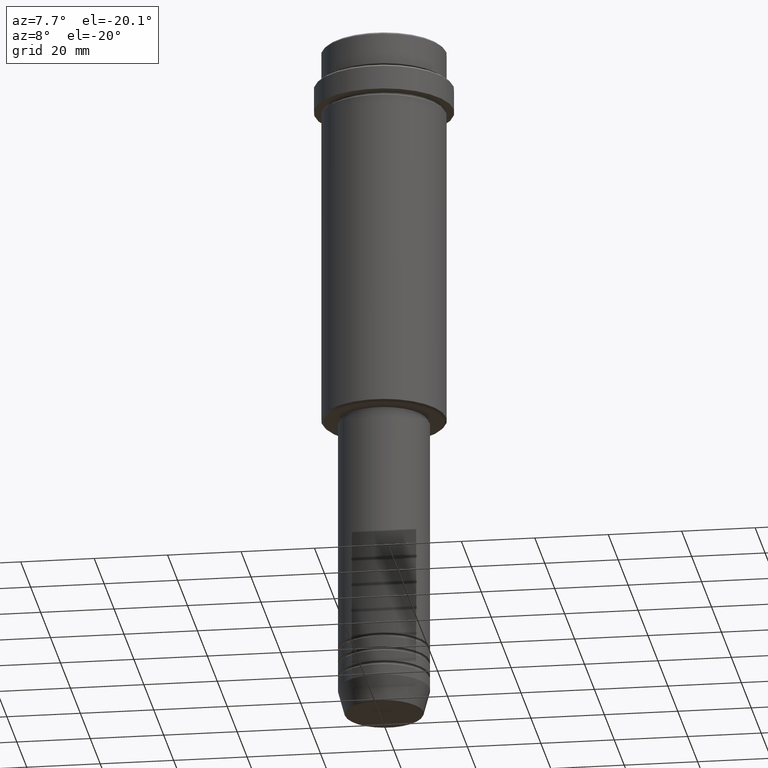
[diagram: clean part render]
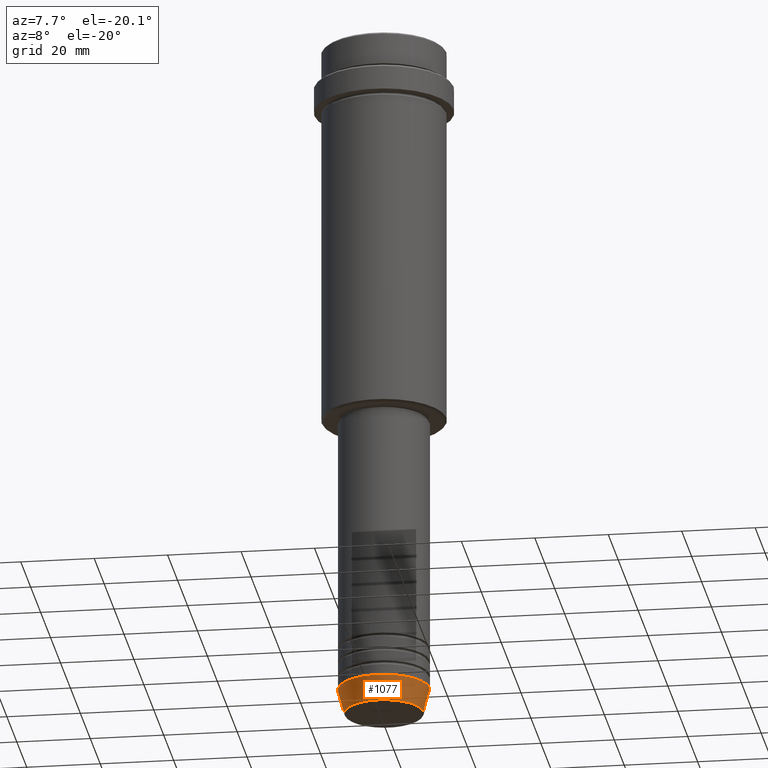
[diagram: same view with one face highlighted and labeled with its STEP entity id]
A machine part, auxiliary view. The second image highlights one B-rep face of the part: STEP entity #1077.
In plain terms, the highlighted conical surface has half-angle 15 deg.
Its self-contained STEP definition (entity closure, byte-faithful):
#28 = DIRECTION ( 'NONE',  ( -0.2588190451025213501, 3.169619151431772337E-17, 0.9659258262890680902 ) ) ;
#33 = CARTESIAN_POINT ( 'NONE',  ( 0.000000000000000000, 0.000000000000000000, -183.0000000000000000 ) ) ;
#58 = EDGE_LOOP ( 'NONE', ( #957, #845, #851, #761 ) ) ;
#119 = CARTESIAN_POINT ( 'NONE',  ( -12.50000000000000000, 1.530808498934191521E-15, -183.0000000000000000 ) ) ;
#182 = AXIS2_PLACEMENT_3D ( 'NONE', #33, #1098, #463 ) ;
#199 = EDGE_CURVE ( 'NONE', #1267, #1005, #1222, .T. ) ;
#229 = CARTESIAN_POINT ( 'NONE',  ( -10.72365507213718416, 1.422038742429750121E-15, -189.6294095225512706 ) ) ;
#252 = EDGE_CURVE ( 'NONE', #1267, #497, #802, .T. ) ;
#282 = EDGE_CURVE ( 'NONE', #1005, #1207, #695, .T. ) ;
#295 = VECTOR ( 'NONE', #569, 1000.000000000000000 ) ;
#299 = AXIS2_PLACEMENT_3D ( 'NONE', #360, #795, #982 ) ;
#360 = CARTESIAN_POINT ( 'NONE',  ( 0.000000000000000000, 0.000000000000000000, -189.6294095225512706 ) ) ;
#443 = CARTESIAN_POINT ( 'NONE',  ( 12.50000000000000000, 0.000000000000000000, -183.0000000000000000 ) ) ;
#463 = DIRECTION ( 'NONE',  ( 1.000000000000000000, 0.000000000000000000, 0.000000000000000000 ) ) ;
#497 = VERTEX_POINT ( 'NONE', #709 ) ;
#559 = CARTESIAN_POINT ( 'NONE',  ( -12.50000000000000000, 1.530808498934191521E-15, -183.0000000000000000 ) ) ;
#569 = DIRECTION ( 'NONE',  ( 0.2588190451025213501, 0.000000000000000000, 0.9659258262890680902 ) ) ;
#588 = LINE ( 'NONE', #443, #295 ) ;
#618 = FACE_OUTER_BOUND ( 'NONE', #58, .T. ) ;
#695 = CIRCLE ( 'NONE', #182, 12.50000000000000000 ) ;
#709 = CARTESIAN_POINT ( 'NONE',  ( 10.72365507213718416, 0.000000000000000000, -189.6294095225512706 ) ) ;
#734 = CARTESIAN_POINT ( 'NONE',  ( 0.000000000000000000, 0.000000000000000000, -183.0000000000000000 ) ) ;
#761 = ORIENTED_EDGE ( 'NONE', *, *, #282, .F. ) ;
#795 = DIRECTION ( 'NONE',  ( -0.000000000000000000, -0.000000000000000000, 1.000000000000000000 ) ) ;
#802 = CIRCLE ( 'NONE', #299, 10.72365507213718416 ) ;
#828 = EDGE_CURVE ( 'NONE', #497, #1207, #588, .T. ) ;
#845 = ORIENTED_EDGE ( 'NONE', *, *, #252, .T. ) ;
#851 = ORIENTED_EDGE ( 'NONE', *, *, #828, .T. ) ;
#951 = AXIS2_PLACEMENT_3D ( 'NONE', #734, #1146, #1047 ) ;
#957 = ORIENTED_EDGE ( 'NONE', *, *, #199, .F. ) ;
#982 = DIRECTION ( 'NONE',  ( 1.000000000000000000, 0.000000000000000000, 0.000000000000000000 ) ) ;
#1005 = VERTEX_POINT ( 'NONE', #559 ) ;
#1047 = DIRECTION ( 'NONE',  ( 1.000000000000000000, 0.000000000000000000, 0.000000000000000000 ) ) ;
#1077 = ADVANCED_FACE ( 'NONE', ( #618 ), #1255, .T. ) ;
#1098 = DIRECTION ( 'NONE',  ( -0.000000000000000000, -0.000000000000000000, 1.000000000000000000 ) ) ;
#1146 = DIRECTION ( 'NONE',  ( -0.000000000000000000, -0.000000000000000000, 1.000000000000000000 ) ) ;
#1177 = VECTOR ( 'NONE', #28, 1000.000000000000000 ) ;
#1197 = CARTESIAN_POINT ( 'NONE',  ( 12.50000000000000000, 0.000000000000000000, -183.0000000000000000 ) ) ;
#1207 = VERTEX_POINT ( 'NONE', #1197 ) ;
#1222 = LINE ( 'NONE', #119, #1177 ) ;
#1255 = CONICAL_SURFACE ( 'NONE', #951, 12.50000000000000000, 0.2617993877991500740 ) ;
#1267 = VERTEX_POINT ( 'NONE', #229 ) ;